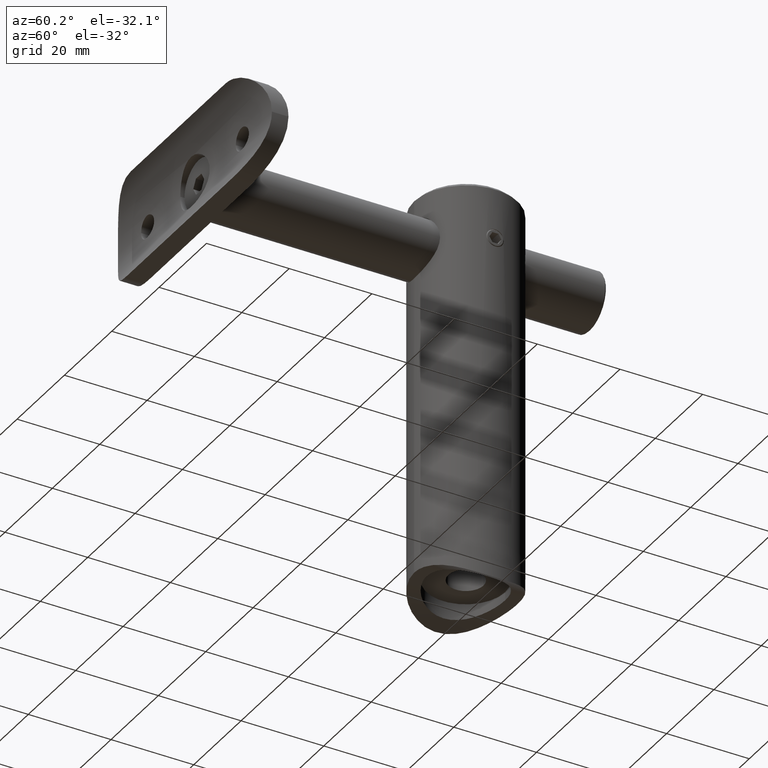
[diagram: clean part render]
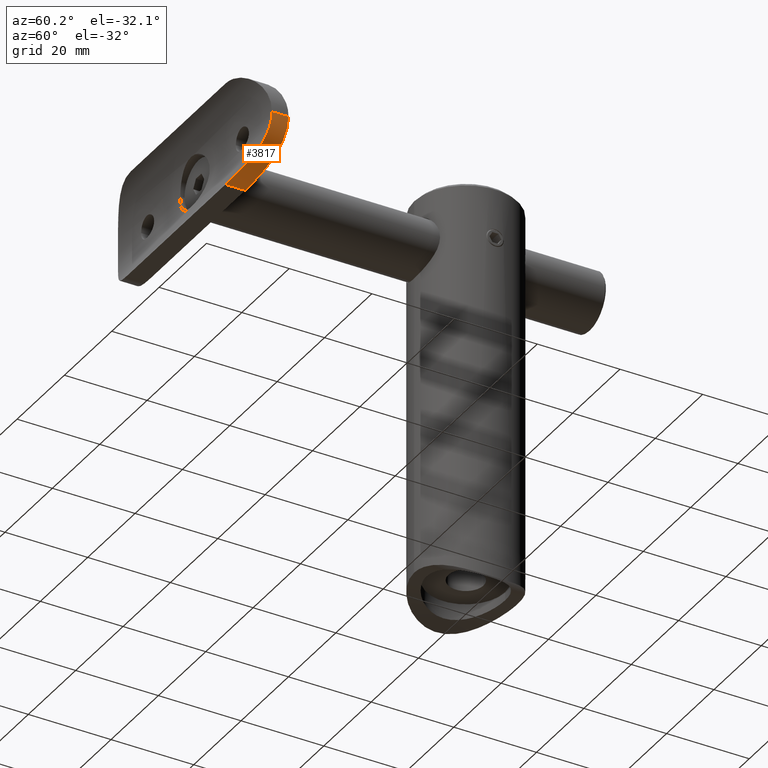
[diagram: same view with one face highlighted and labeled with its STEP entity id]
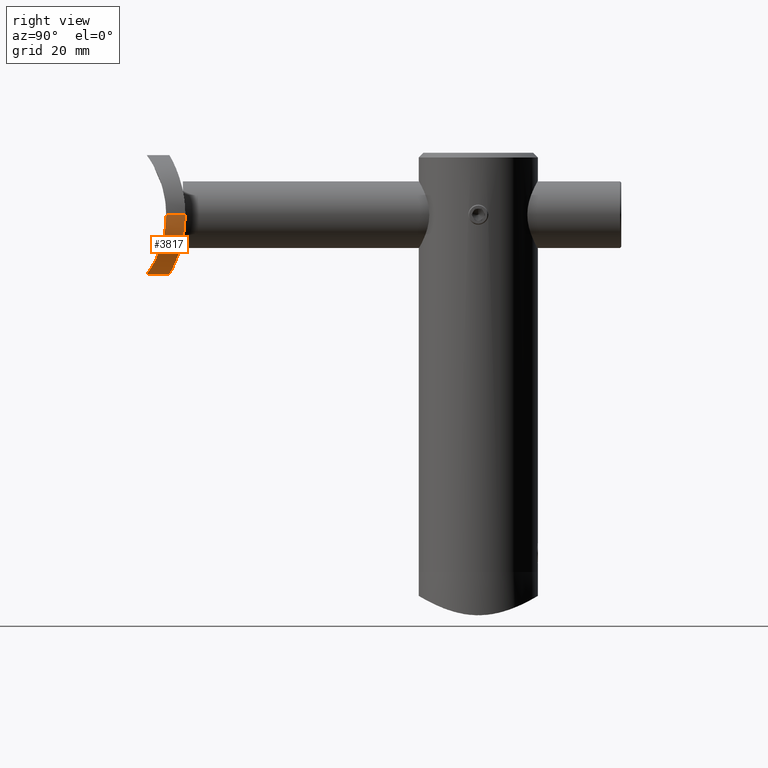
[diagram: same view with one face highlighted and labeled with its STEP entity id]
A machine part, auxiliary view. The second image highlights one B-rep face of the part: STEP entity #3817.
A second angle (right view) of the same face is appended — the face is thin or edge-on in the first view.
In plain terms, the highlighted cylindrical surface (partial cylindrical patch) has radius 12.5 mm, axis along (0, -1, 0).
Its self-contained STEP definition (entity closure, byte-faithful):
#58 = CARTESIAN_POINT ( 'NONE',  ( 2.877492456091673922, 0.1615283928029649652, -32.17128298990891722 ) ) ;
#1293 = CARTESIAN_POINT ( 'NONE',  ( 12.50000000000000355, 3.318729470161013495, -20.00000000000000355 ) ) ;
#1463 = CARTESIAN_POINT ( 'NONE',  ( 1.680376849083645263, 4.050750502668659436, -32.41446829867825841 ) ) ;
#1754 = CARTESIAN_POINT ( 'NONE',  ( 11.68341459577140107, 2.871341540761539246, -24.46233648995674059 ) ) ;
#1848 = CARTESIAN_POINT ( 'NONE',  ( 9.413556458363910195, 6.194533709361365048, -28.26249860773988942 ) ) ;
#1874 = CARTESIAN_POINT ( 'NONE',  ( 12.41450038045377369, 8.013930239834728297, -21.67799915308982506 ) ) ;
#2175 = CARTESIAN_POINT ( 'NONE',  ( 0.000000000000000000, 4.000000000000003553, -32.50000000000000000 ) ) ;
#2176 = DIRECTION ( 'NONE',  ( 0.000000000000000000, 1.000000000000000000, 0.000000000000000000 ) ) ;
#2472 = LINE ( 'NONE', #1293, #4938 ) ;
#3195 = CARTESIAN_POINT ( 'NONE',  ( 3.277855041561019256, 0.2108776143917484025, -32.06970119788353202 ) ) ;
#3708 = VERTEX_POINT ( 'NONE', #6527 ) ;
#3817 = ADVANCED_FACE ( 'NONE', ( #9108 ), #15294, .T. ) ;
#4002 = EDGE_CURVE ( 'NONE', #10802, #5254, #14802, .T. ) ;
#4273 = CARTESIAN_POINT ( 'NONE',  ( 0.000000000000000000, 25.19999999999999929, -32.50000000000000000 ) ) ;
#4311 = ORIENTED_EDGE ( 'NONE', *, *, #10994, .F. ) ;
#4553 = CARTESIAN_POINT ( 'NONE',  ( 5.620677554943403820, 4.744079628429565432, -31.19483348254707167 ) ) ;
#4698 = CARTESIAN_POINT ( 'NONE',  ( 10.83018612312571882, 2.440555194631701230, -26.29386951518686644 ) ) ;
#4840 = CARTESIAN_POINT ( 'NONE',  ( 5.592058036261040144, 0.6162643484422566376, -31.20930733956446801 ) ) ;
#4906 = CARTESIAN_POINT ( 'NONE',  ( 12.50000000000000888, 3.318729470161013939, -20.84105733039346120 ) ) ;
#4938 = VECTOR ( 'NONE', #12110, 1000.000000000000000 ) ;
#5195 = VECTOR ( 'NONE', #10796, 1000.000000000000000 ) ;
#5254 = VERTEX_POINT ( 'NONE', #2175 ) ;
#5772 = CARTESIAN_POINT ( 'NONE',  ( 10.82196766755579453, 6.962884092408003767, -26.30774772896643654 ) ) ;
#6156 = CARTESIAN_POINT ( 'NONE',  ( 4.105999603327870950, 4.397476152548235540, -31.81377709549067134 ) ) ;
#6218 = CARTESIAN_POINT ( 'NONE',  ( 2.903656776258744188, 4.195777031998702000, -32.16519419076993813 ) ) ;
#6315 = CARTESIAN_POINT ( 'NONE',  ( 8.266035766619461711, 1.392015620549697186, -29.38537545976075194 ) ) ;
#6527 = CARTESIAN_POINT ( 'NONE',  ( 12.50000000000000355, 8.077208171562682892, -20.00000000000000355 ) ) ;
#7823 = CARTESIAN_POINT ( 'NONE',  ( 11.21245238722107018, 2.629098992545241931, -25.58474759764793660 ) ) ;
#7960 = CARTESIAN_POINT ( 'NONE',  ( 12.16969663537521029, 3.133117325917486262, -22.88442763853376150 ) ) ;
#8099 = CARTESIAN_POINT ( 'NONE',  ( 0.000000000000000000, 0.000000000000000000, -32.50000000000000000 ) ) ;
#8438 = CARTESIAN_POINT ( 'NONE',  ( 0.000000000000000000, 3.318729470161013495, -20.00000000000000355 ) ) ;
#9108 = FACE_OUTER_BOUND ( 'NONE', #18044, .T. ) ;
#9171 = ORIENTED_EDGE ( 'NONE', *, *, #16154, .F. ) ;
#9402 = CARTESIAN_POINT ( 'NONE',  ( 9.919985569846216933, 6.456967504733635010, -27.64830385797707279 ) ) ;
#9526 = CARTESIAN_POINT ( 'NONE',  ( 7.316861939614359933, 1.083062932609342388, -30.14291416132809687 ) ) ;
#9604 = CARTESIAN_POINT ( 'NONE',  ( 8.570261194392806203, 5.807054850030223925, -29.10818890720388197 ) ) ;
#9660 = CARTESIAN_POINT ( 'NONE',  ( 4.460191993434857949, 0.3948698794312856530, -31.68435314470301023 ) ) ;
#10796 = DIRECTION ( 'NONE',  ( -0.000000000000000000, 1.000000000000000000, -0.000000000000000000 ) ) ;
#10802 = VERTEX_POINT ( 'NONE', #13335 ) ;
#10994 = EDGE_CURVE ( 'NONE', #10802, #16578, #13409, .T. ) ;
#11050 = CARTESIAN_POINT ( 'NONE',  ( 9.910013130227612876, 2.028718244006083804, -27.62913782769574667 ) ) ;
#11122 = CARTESIAN_POINT ( 'NONE',  ( 0.8406273536774238053, -0.000000000000000000, -32.49999999999999289 ) ) ;
#11197 = CARTESIAN_POINT ( 'NONE',  ( 11.82318603278413960, 2.945306615177193610, -24.07833795785315445 ) ) ;
#11771 = CARTESIAN_POINT ( 'NONE',  ( 8.275097588008394567, 5.678865835620641178, -29.37734438678382531 ) ) ;
#12110 = DIRECTION ( 'NONE',  ( 0.000000000000000000, 1.000000000000000000, 0.000000000000000000 ) ) ;
#12568 = CARTESIAN_POINT ( 'NONE',  ( 12.41600094213972305, 3.270152093552303629, -21.66693629175976099 ) ) ;
#12625 = AXIS2_PLACEMENT_3D ( 'NONE', #8438, #2176, #19463 ) ;
#12637 = CARTESIAN_POINT ( 'NONE',  ( 1.664684350995175421, 0.04192139592814493609, -32.41608617209116971 ) ) ;
#12647 = ORIENTED_EDGE ( 'NONE', *, *, #16753, .F. ) ;
#13335 = CARTESIAN_POINT ( 'NONE',  ( 0.000000000000000000, 0.000000000000000000, -32.50000000000000000 ) ) ;
#13409 = B_SPLINE_CURVE_WITH_KNOTS ( 'NONE', 3,
 ( #8099, #11122, #12637, #58, #3195, #15876, #9660, #4840, #17469, #9526, #17248, #6315, #14220, #19034, #18815, #11050, #17320, #4698, #7823, #1754, #11197, #20422, #7960, #12568, #4906, #15799 ),
 .UNSPECIFIED., .F., .F.,
 ( 4, 2, 2, 2, 2, 2, 2, 2, 2, 2, 2, 2, 4 ),
 ( 0.000000000000000000, 0.002483427128890330991, 0.003725140693335499738, 0.004966854257780666318, 0.007450281386671002946, 0.008691994951116169960, 0.009933708515561337840, 0.01117542208000650572, 0.01241713564445167187, 0.01490056277334199895, 0.01614227633778715643, 0.01738398990223231563, 0.01986741703112264446 ),
 .UNSPECIFIED. ) ;
#13990 = CARTESIAN_POINT ( 'NONE',  ( 3.307977677724412313, 4.255752225252753540, -32.06158553790278631 ) ) ;
#14220 = CARTESIAN_POINT ( 'NONE',  ( 8.562866471435933491, 1.497495063479012956, -29.11525600394245572 ) ) ;
#14802 = LINE ( 'NONE', #4273, #5195 ) ;
#14968 = ORIENTED_EDGE ( 'NONE', *, *, #4002, .T. ) ;
#15213 = CARTESIAN_POINT ( 'NONE',  ( 7.655030421865179235, 5.427483003039803577, -29.89001198582322516 ) ) ;
#15294 = CYLINDRICAL_SURFACE ( 'NONE', #12625, 12.50000000000000000 ) ;
#15514 = CARTESIAN_POINT ( 'NONE',  ( 0.8487943003396115627, 4.000000000000004441, -32.50000000000000711 ) ) ;
#15584 = CARTESIAN_POINT ( 'NONE',  ( 0.000000000000000000, 4.000000000000003553, -32.50000000000000000 ) ) ;
#15642 = CARTESIAN_POINT ( 'NONE',  ( 12.50000000000000355, 8.077208171562682892, -20.00000000000000355 ) ) ;
#15658 = CARTESIAN_POINT ( 'NONE',  ( 4.492959243642649092, 4.477970880216995297, -31.67175631405216052 ) ) ;
#15799 = CARTESIAN_POINT ( 'NONE',  ( 12.50000000000000355, 3.318729470161013495, -20.00000000000000355 ) ) ;
#15876 = CARTESIAN_POINT ( 'NONE',  ( 4.070717388981838880, 0.3277296730789912571, -31.82587335543210472 ) ) ;
#16154 = EDGE_CURVE ( 'NONE', #16578, #3708, #2472, .T. ) ;
#16578 = VERTEX_POINT ( 'NONE', #16855 ) ;
#16675 = CARTESIAN_POINT ( 'NONE',  ( 7.329839308601783898, 5.304310467230259007, -30.13339322785992991 ) ) ;
#16753 = EDGE_CURVE ( 'NONE', #3708, #5254, #17455, .T. ) ;
#16855 = CARTESIAN_POINT ( 'NONE',  ( 12.50000000000000355, 3.318729470161013495, -20.00000000000000355 ) ) ;
#17248 = CARTESIAN_POINT ( 'NONE',  ( 7.643915563752456954, 1.185045859685578851, -29.89864509263436787 ) ) ;
#17320 = CARTESIAN_POINT ( 'NONE',  ( 10.15326211524584643, 2.134602035805861941, -27.30241053714794930 ) ) ;
#17455 = B_SPLINE_CURVE_WITH_KNOTS ( 'NONE', 3,
 ( #15642, #18133, #1874, #19502, #19573, #19775, #5772, #9402, #1848, #9604, #11771, #15213, #16675, #20409, #4553, #15658, #6156, #13990, #6218, #1463, #15514, #15584 ),
 .UNSPECIFIED., .F., .F.,
 ( 4, 2, 2, 2, 2, 2, 2, 2, 2, 2, 4 ),
 ( 0.000000000000000000, 0.002503829590647107563, 0.005007659181294214258, 0.007511488771941321821, 0.01001531836258842852, 0.01126723315791198013, 0.01251914795323553348, 0.01502297754388263670, 0.01627489233920619352, 0.01752680713452975034, 0.02003063672517685703 ),
 .UNSPECIFIED. ) ;
#17469 = CARTESIAN_POINT ( 'NONE',  ( 6.305381315458570057, 0.7915044484486738474, -30.82371801999915917 ) ) ;
#18044 = EDGE_LOOP ( 'NONE', ( #4311, #14968, #12647, #9171 ) ) ;
#18133 = CARTESIAN_POINT ( 'NONE',  ( 12.50000000000000533, 8.077208171562682892, -20.84887060648279444 ) ) ;
#18815 = CARTESIAN_POINT ( 'NONE',  ( 9.398516132625637454, 1.816575251650671907, -28.25106046154296635 ) ) ;
#19034 = CARTESIAN_POINT ( 'NONE',  ( 9.129107160068516080, 1.709771713892833001, -28.54809784016517327 ) ) ;
#19463 = DIRECTION ( 'NONE',  ( 0.000000000000000000, 0.000000000000000000, 1.000000000000000000 ) ) ;
#19502 = CARTESIAN_POINT ( 'NONE',  ( 12.08472937843047390, 7.780467016947508974, -23.30072972297892520 ) ) ;
#19573 = CARTESIAN_POINT ( 'NONE',  ( 11.83620638877005682, 7.607798498856690905, -24.10069751121964998 ) ) ;
#19775 = CARTESIAN_POINT ( 'NONE',  ( 11.20502510935213358, 7.199201472346335784, -25.59990303977420822 ) ) ;
#20409 = CARTESIAN_POINT ( 'NONE',  ( 6.328572668113498167, 4.954279635400570925, -30.80962434064442945 ) ) ;
#20422 = CARTESIAN_POINT ( 'NONE',  ( 12.06660317602190169, 3.076343127531650179, -23.28902056191593672 ) ) ;